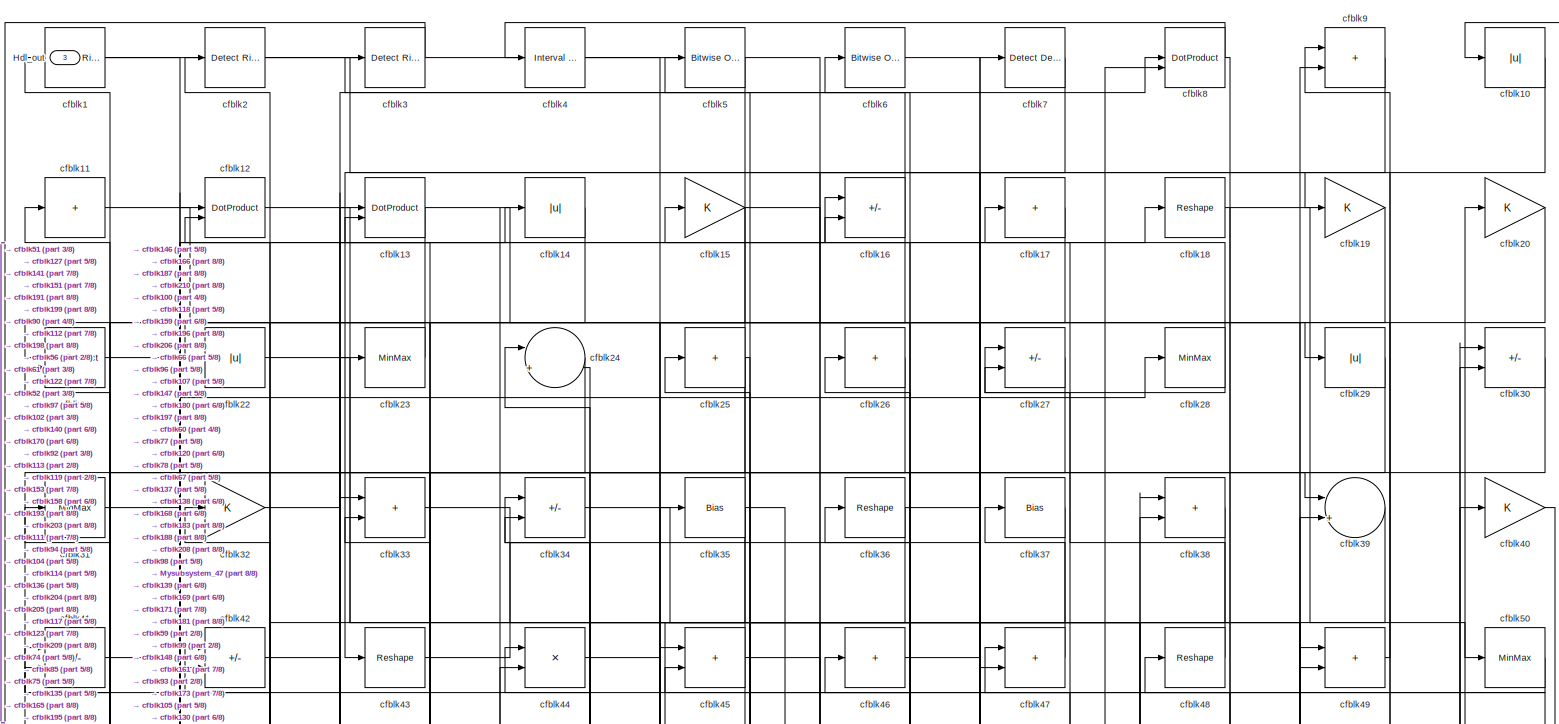
[diagram: root canvas - part 1/8, full width, top band]
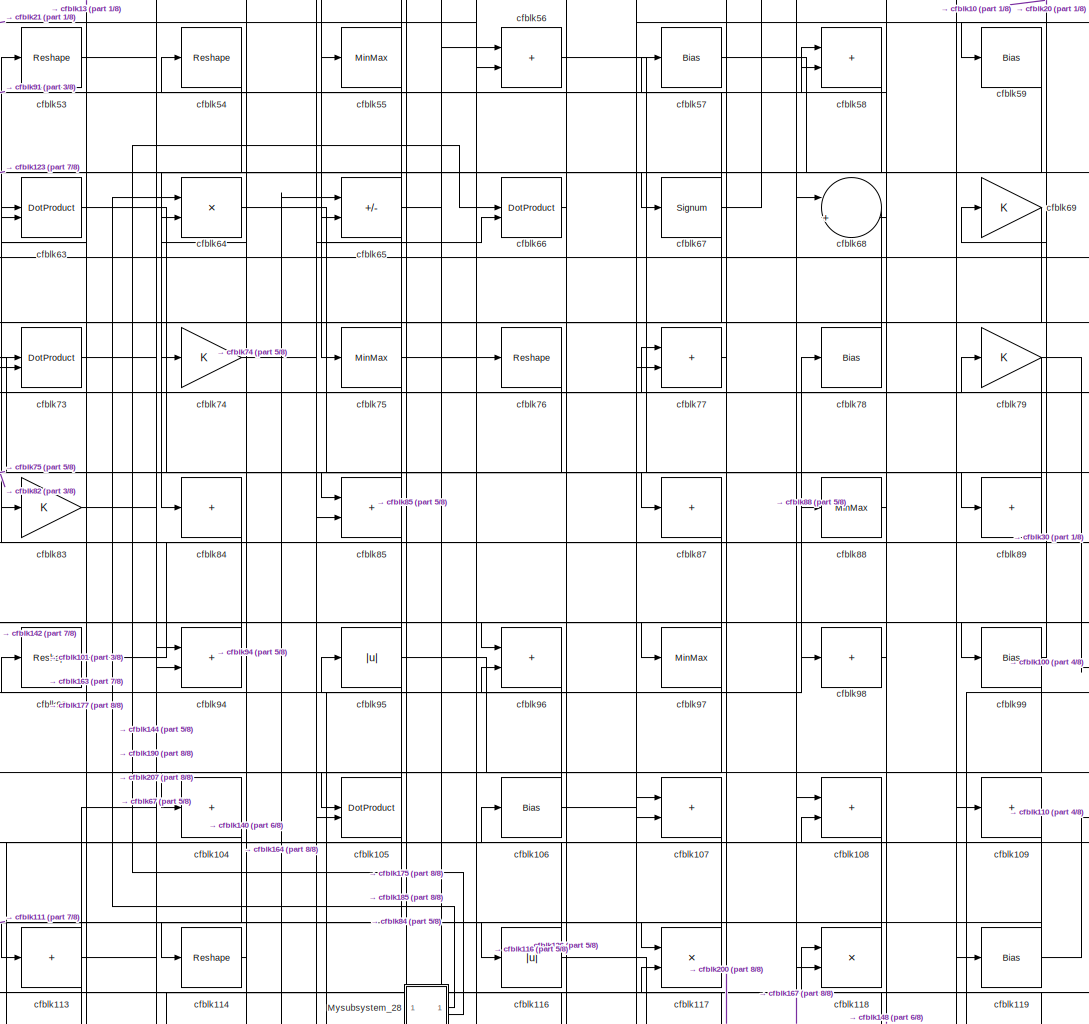
[diagram: root canvas - part 2/8, central region]
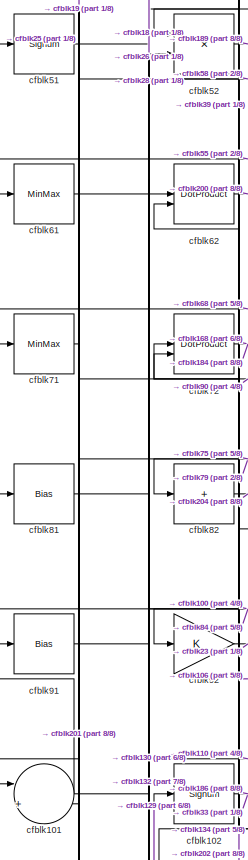
[diagram: root canvas - part 3/8, middle left region]
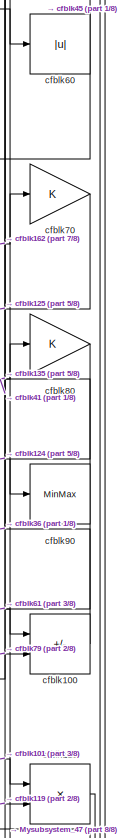
[diagram: root canvas - part 4/8, middle right region]
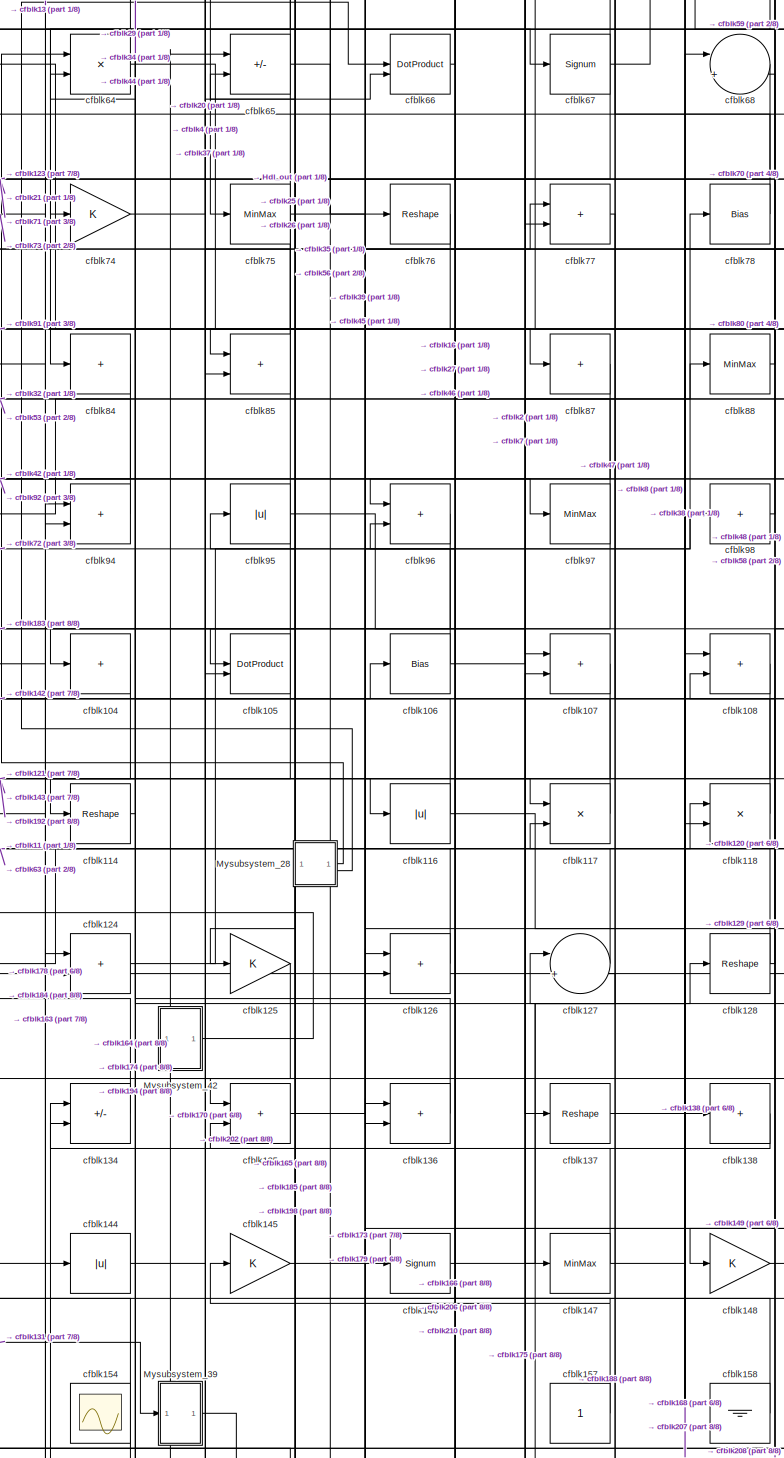
[diagram: root canvas - part 5/8, central region]
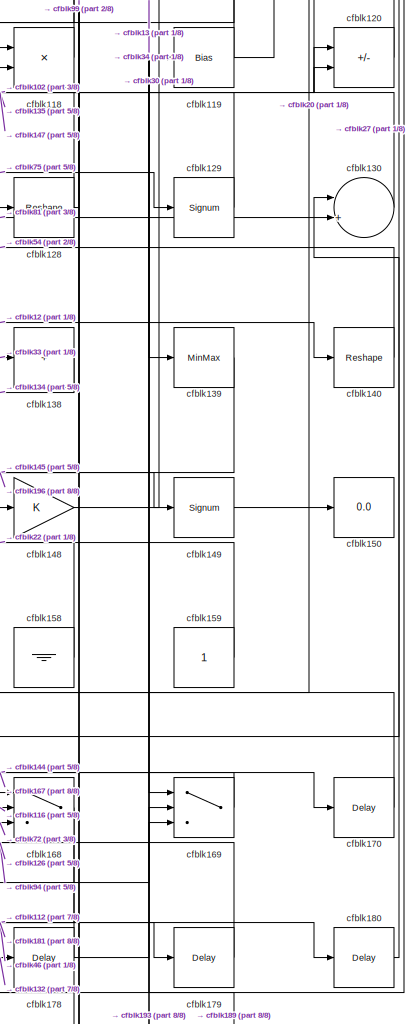
[diagram: root canvas - part 6/8, bottom right region]
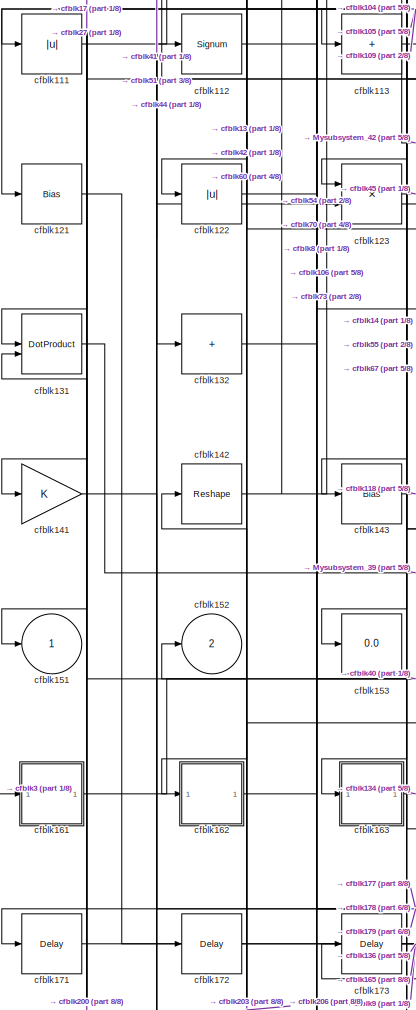
[diagram: root canvas - part 7/8, bottom left region]
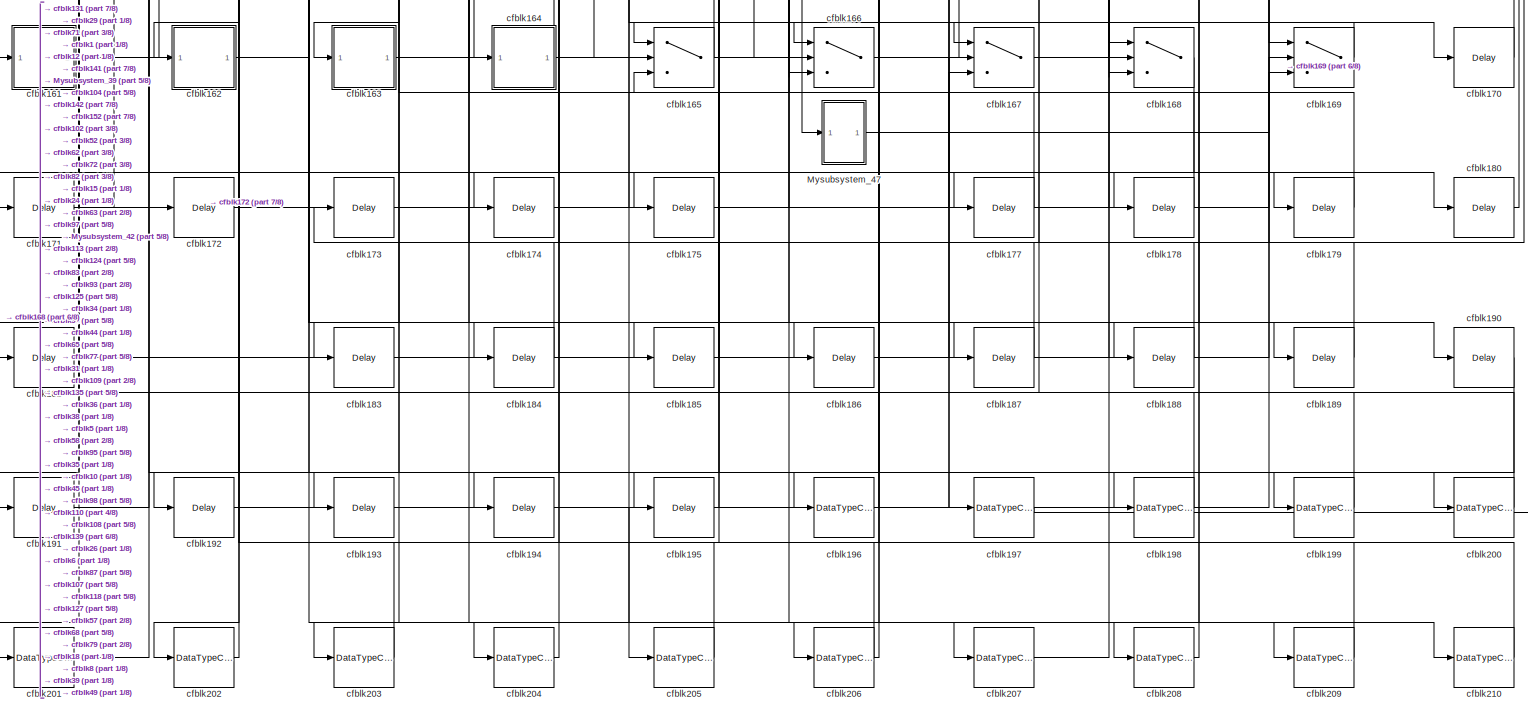
[diagram: root canvas - part 8/8, full width, bottom band]
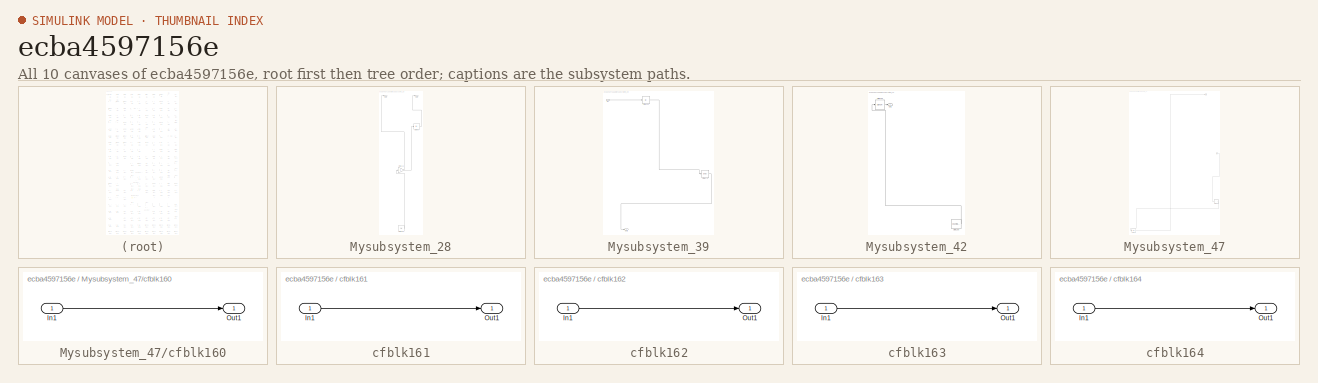
[diagram: thumbnail index - all 10 canvases of the model, root first then tree order]
MODEL slx_ecba4597156e
KIND model
CONFIG AbsTol = auto
CONFIG EnableMultiTasking = off
CONFIG FixedStep = auto
CONFIG MaxStep = auto
CONFIG MinStep = auto
CONFIG RelTol = 1e-3
CONFIG SampleTimeConstraint = Unconstrained
CONFIG SolverName = VariableStepAuto
CONFIG StartTime = 0.0
CONFIG StopTime = 10.0
BLOCK [Outport] Hdl_out
  OutDataTypeStr = uint8
  Port = 3
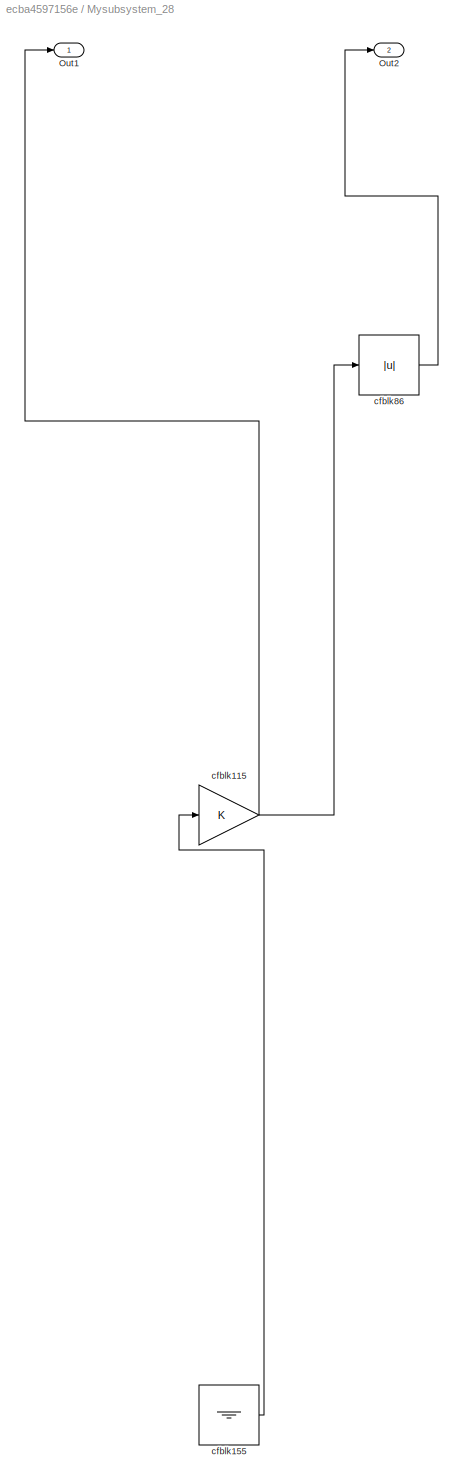
BLOCK [SubSystem] Mysubsystem_28
  RTWFcnName = Mysubsystem_28
  RTWFcnNameOpts = User specified
  RTWFileNameOpts = Use function name
  RTWSystemCode = Reusable function
  TreatAsAtomicUnit = on
BLOCK [Outport] Mysubsystem_28/Out1
BLOCK [Outport] Mysubsystem_28/Out2
  Port = 2
BLOCK [Gain] Mysubsystem_28/cfblk115
BLOCK [Ground] Mysubsystem_28/cfblk155
BLOCK [Abs] Mysubsystem_28/cfblk86
  SaturateOnIntegerOverflow = off
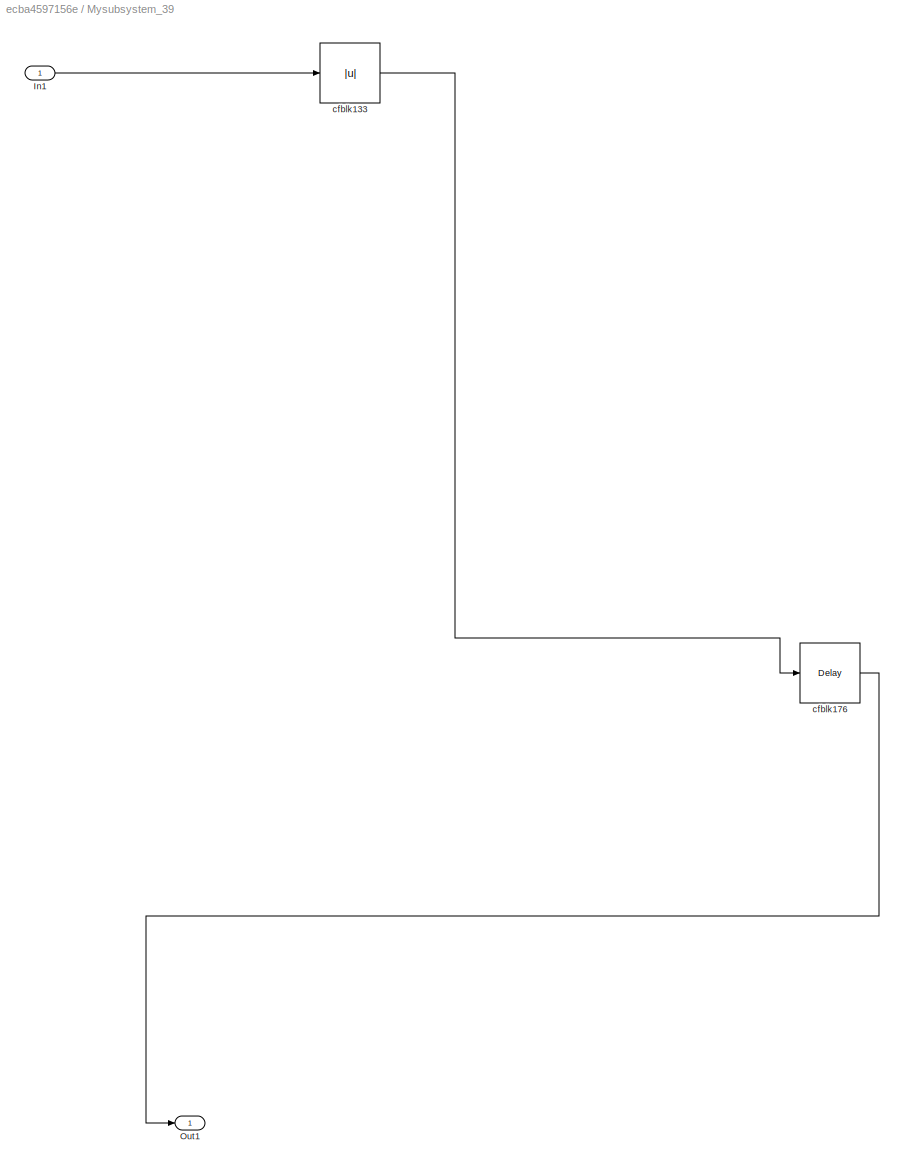
BLOCK [SubSystem] Mysubsystem_39
  RTWFcnName = Mysubsystem_39
  RTWFcnNameOpts = User specified
  RTWFileNameOpts = Use function name
  RTWSystemCode = Reusable function
  TreatAsAtomicUnit = on
BLOCK [Inport] Mysubsystem_39/In1
BLOCK [Outport] Mysubsystem_39/Out1
BLOCK [Abs] Mysubsystem_39/cfblk133
  SaturateOnIntegerOverflow = off
BLOCK [Delay] Mysubsystem_39/cfblk176
  InputPortMap = u0
  SampleTime = 1
BLOCK [SubSystem] Mysubsystem_42
  RTWFcnName = Mysubsystem_42
  RTWFcnNameOpts = User specified
  RTWFileNameOpts = Use function name
  RTWSystemCode = Reusable function
  TreatAsAtomicUnit = on
BLOCK [Outport] Mysubsystem_42/Out1
BLOCK [Signum] Mysubsystem_42/cfblk103
BLOCK [Reference] Mysubsystem_42/cfblk156  REF=hdlsllib/Sources/Counter
Limited
  SourceBlock = hdlsllib/Sources/Counter\nLimited
  SourceType = Counter Limited
BLOCK [SubSystem] Mysubsystem_47
  RTWFcnName = Mysubsystem_47
  RTWFcnNameOpts = User specified
  RTWFileNameOpts = Use function name
  RTWSystemCode = Reusable function
  TreatAsAtomicUnit = on
BLOCK [Inport] Mysubsystem_47/In1
BLOCK [Outport] Mysubsystem_47/Out1
BLOCK [SubSystem] Mysubsystem_47/cfblk160
  LibrarySourceBlock = hdlsllib/Ports &\nSubsystems/Subsystem
BLOCK [Inport] Mysubsystem_47/cfblk160/In1
BLOCK [Outport] Mysubsystem_47/cfblk160/Out1
BLOCK [Delay] Mysubsystem_47/cfblk182
  InputPortMap = u0
  SampleTime = 1
BLOCK [Reference] cfblk1  REF=hdlsllib/Logic and Bit
Operations/Detect Rise
Positive
  SourceBlock = hdlsllib/Logic and Bit\nOperations/Detect Rise\nPositive
  SourceType = Detect Rise Positive
BLOCK [Abs] cfblk10
  OutDataTypeStr = uint8
  SaturateOnIntegerOverflow = off
BLOCK [Sum] cfblk100
  IconShape = rectangular
  Inputs = +-
  OutDataTypeStr = uint8
BLOCK [Sum] cfblk101
  Inputs = |++
  OutDataTypeStr = uint8
BLOCK [Signum] cfblk102
BLOCK [Sum] cfblk104
  IconShape = rectangular
  Inputs = +
  OutDataTypeStr = uint8
BLOCK [DotProduct] cfblk105
  OutDataTypeStr = uint8
BLOCK [Bias] cfblk106
  Bias = 0.0
  SaturateOnIntegerOverflow = off
BLOCK [Sum] cfblk107
  IconShape = rectangular
  OutDataTypeStr = uint8
BLOCK [Sum] cfblk108
  IconShape = rectangular
  OutDataTypeStr = uint8
BLOCK [Sum] cfblk109
  IconShape = rectangular
  Inputs = +
  OutDataTypeStr = uint8
BLOCK [Sum] cfblk11
  IconShape = rectangular
  Inputs = +
  OutDataTypeStr = uint8
BLOCK [Product] cfblk110
  Inputs = */
  OutDataTypeStr = uint8
  RndMeth = Zero
  SaturateOnIntegerOverflow = on
BLOCK [Abs] cfblk111
  OutDataTypeStr = uint8
  SaturateOnIntegerOverflow = off
BLOCK [Signum] cfblk112
BLOCK [Sum] cfblk113
  IconShape = rectangular
  Inputs = +
  OutDataTypeStr = uint8
BLOCK [Reshape] cfblk114
BLOCK [Abs] cfblk116
  OutDataTypeStr = uint8
  SaturateOnIntegerOverflow = off
BLOCK [Product] cfblk117
  Inputs = */
  OutDataTypeStr = uint8
  RndMeth = Zero
  SaturateOnIntegerOverflow = on
BLOCK [Product] cfblk118
  Inputs = */
  OutDataTypeStr = uint8
  RndMeth = Zero
  SaturateOnIntegerOverflow = on
BLOCK [Bias] cfblk119
  Bias = 0.0
  SaturateOnIntegerOverflow = off
BLOCK [DotProduct] cfblk12
  OutDataTypeStr = uint8
BLOCK [Sum] cfblk120
  IconShape = rectangular
  Inputs = +-
  OutDataTypeStr = uint8
BLOCK [Bias] cfblk121
  Bias = 0.0
  SaturateOnIntegerOverflow = off
BLOCK [Abs] cfblk122
  OutDataTypeStr = uint8
  SaturateOnIntegerOverflow = off
BLOCK [Product] cfblk123
  Inputs = */
  OutDataTypeStr = uint8
  RndMeth = Zero
  SaturateOnIntegerOverflow = on
BLOCK [Sum] cfblk124
  IconShape = rectangular
  OutDataTypeStr = uint8
BLOCK [Gain] cfblk125
  OutDataTypeStr = uint8
BLOCK [Sum] cfblk126
  IconShape = rectangular
  OutDataTypeStr = uint8
BLOCK [Sum] cfblk127
  Inputs = |++
  OutDataTypeStr = uint8
BLOCK [Reshape] cfblk128
BLOCK [Signum] cfblk129
BLOCK [DotProduct] cfblk13
  OutDataTypeStr = uint8
BLOCK [Sum] cfblk130
  Inputs = |++
  OutDataTypeStr = uint8
BLOCK [DotProduct] cfblk131
  OutDataTypeStr = uint8
BLOCK [Sum] cfblk132
  IconShape = rectangular
  Inputs = +
  OutDataTypeStr = uint8
BLOCK [Sum] cfblk134
  IconShape = rectangular
  Inputs = +-
  OutDataTypeStr = uint8
BLOCK [Sum] cfblk135
  IconShape = rectangular
  OutDataTypeStr = uint8
BLOCK [Sum] cfblk136
  IconShape = rectangular
  OutDataTypeStr = uint8
BLOCK [Reshape] cfblk137
BLOCK [Sum] cfblk138
  IconShape = rectangular
  Inputs = +
  OutDataTypeStr = uint8
BLOCK [MinMax] cfblk139
  OutDataTypeStr = uint8
BLOCK [Abs] cfblk14
  OutDataTypeStr = uint8
  SaturateOnIntegerOverflow = off
BLOCK [Reshape] cfblk140
BLOCK [Gain] cfblk141
  OutDataTypeStr = uint8
BLOCK [Reshape] cfblk142
BLOCK [Bias] cfblk143
  Bias = 0.0
  SaturateOnIntegerOverflow = off
BLOCK [Abs] cfblk144
  OutDataTypeStr = uint8
  SaturateOnIntegerOverflow = off
BLOCK [Gain] cfblk145
  OutDataTypeStr = uint8
BLOCK [Signum] cfblk146
BLOCK [MinMax] cfblk147
  OutDataTypeStr = uint8
BLOCK [Gain] cfblk148
  OutDataTypeStr = uint8
BLOCK [Signum] cfblk149
BLOCK [Gain] cfblk15
  OutDataTypeStr = uint8
BLOCK [Display] cfblk150
  Decimation = 1
BLOCK [Outport] cfblk151
  OutDataTypeStr = uint8
  VectorParamsAs1DForOutWhenUnconnected = off
BLOCK [Outport] cfblk152
  OutDataTypeStr = uint8
  Port = 2
  VectorParamsAs1DForOutWhenUnconnected = off
BLOCK [Display] cfblk153
  Decimation = 1
BLOCK [Scope] cfblk154
  Floating = on
  NumInputPorts = 1
  ScopeSpecificationString = Simulink.scopes.TimeScopeBlockCfg('CurrentConfiguration', extmgr.ConfigurationSet(extmgr.Configuration('Core','General UI',true,'FigureColor',[0.156862745098039 0.156862745098039 0.156862745098039]),extmgr.Configuration('Core','Source UI',true),extmgr.Configuration('Sources','WiredSimulink',true,'DataLoggingVariableName','ScopeData1','DataLoggingSaveFormat','StructureWithTime','DataLoggingLimitDat...<+2713ch>
BLOCK [Constant] cfblk157
  OutDataTypeStr = uint8
  SampleTime = -1
BLOCK [Ground] cfblk158
BLOCK [Constant] cfblk159
  OutDataTypeStr = uint8
  SampleTime = -1
BLOCK [Sum] cfblk16
  IconShape = rectangular
  Inputs = +-
  OutDataTypeStr = uint8
BLOCK [SubSystem] cfblk161
  LibrarySourceBlock = hdlsllib/Ports &\nSubsystems/Subsystem
BLOCK [Inport] cfblk161/In1
BLOCK [Outport] cfblk161/Out1
BLOCK [SubSystem] cfblk162
  LibrarySourceBlock = hdlsllib/Ports &\nSubsystems/Subsystem
BLOCK [Inport] cfblk162/In1
BLOCK [Outport] cfblk162/Out1
BLOCK [SubSystem] cfblk163
  LibrarySourceBlock = hdlsllib/Ports &\nSubsystems/Subsystem
BLOCK [Inport] cfblk163/In1
BLOCK [Outport] cfblk163/Out1
BLOCK [SubSystem] cfblk164
  LibrarySourceBlock = hdlsllib/Ports &\nSubsystems/Subsystem
BLOCK [Inport] cfblk164/In1
BLOCK [Outport] cfblk164/Out1
BLOCK [Switch] cfblk165
  InputSameDT = off
  OutDataTypeStr = uint8
  SaturateOnIntegerOverflow = off
BLOCK [Switch] cfblk166
  InputSameDT = off
  OutDataTypeStr = uint8
  SaturateOnIntegerOverflow = off
BLOCK [Switch] cfblk167
  InputSameDT = off
  OutDataTypeStr = uint8
  SaturateOnIntegerOverflow = off
BLOCK [Switch] cfblk168
  InputSameDT = off
  OutDataTypeStr = uint8
  SaturateOnIntegerOverflow = off
BLOCK [Switch] cfblk169
  InputSameDT = off
  OutDataTypeStr = uint8
  SaturateOnIntegerOverflow = off
BLOCK [Sum] cfblk17
  IconShape = rectangular
  Inputs = +
  OutDataTypeStr = uint8
BLOCK [Delay] cfblk170
  InputPortMap = u0
  SampleTime = 1
BLOCK [Delay] cfblk171
  InputPortMap = u0
  SampleTime = 1
BLOCK [Delay] cfblk172
  InputPortMap = u0
  SampleTime = 1
BLOCK [Delay] cfblk173
  InputPortMap = u0
  SampleTime = 1
BLOCK [Delay] cfblk174
  InputPortMap = u0
  SampleTime = 1
BLOCK [Delay] cfblk175
  InputPortMap = u0
  SampleTime = 1
BLOCK [Delay] cfblk177
  InputPortMap = u0
  SampleTime = 1
BLOCK [Delay] cfblk178
  InputPortMap = u0
  SampleTime = 1
BLOCK [Delay] cfblk179
  InputPortMap = u0
  SampleTime = 1
BLOCK [Reshape] cfblk18
BLOCK [Delay] cfblk180
  InputPortMap = u0
  SampleTime = 1
BLOCK [Delay] cfblk181
  InputPortMap = u0
  SampleTime = 1
BLOCK [Delay] cfblk183
  InputPortMap = u0
  SampleTime = 1
BLOCK [Delay] cfblk184
  InputPortMap = u0
  SampleTime = 1
BLOCK [Delay] cfblk185
  InputPortMap = u0
  SampleTime = 1
BLOCK [Delay] cfblk186
  InputPortMap = u0
  SampleTime = 1
BLOCK [Delay] cfblk187
  InputPortMap = u0
  SampleTime = 1
BLOCK [Delay] cfblk188
  InputPortMap = u0
  SampleTime = 1
BLOCK [Delay] cfblk189
  InputPortMap = u0
  SampleTime = 1
BLOCK [Gain] cfblk19
  OutDataTypeStr = uint8
BLOCK [Delay] cfblk190
  InputPortMap = u0
  SampleTime = 1
BLOCK [Delay] cfblk191
  InputPortMap = u0
  SampleTime = 1
BLOCK [Delay] cfblk192
  InputPortMap = u0
  SampleTime = 1
BLOCK [Delay] cfblk193
  InputPortMap = u0
  SampleTime = 1
BLOCK [Delay] cfblk194
  InputPortMap = u0
  SampleTime = 1
BLOCK [Delay] cfblk195
  InputPortMap = u0
  SampleTime = 1
BLOCK [DataTypeConversion] cfblk196
  OutDataTypeStr = uint8
  RndMeth = Floor
  SaturateOnIntegerOverflow = off
BLOCK [DataTypeConversion] cfblk197
  OutDataTypeStr = uint8
  RndMeth = Floor
  SaturateOnIntegerOverflow = off
BLOCK [DataTypeConversion] cfblk198
  OutDataTypeStr = uint8
  RndMeth = Floor
  SaturateOnIntegerOverflow = off
BLOCK [DataTypeConversion] cfblk199
  OutDataTypeStr = uint8
  RndMeth = Floor
  SaturateOnIntegerOverflow = off
BLOCK [Reference] cfblk2  REF=hdlsllib/Logic and Bit
Operations/Detect Rise
Nonnegative
  SourceBlock = hdlsllib/Logic and Bit\nOperations/Detect Rise\nNonnegative
  SourceType = Detect Rise Nonnegative
BLOCK [Gain] cfblk20
  OutDataTypeStr = uint8
BLOCK [DataTypeConversion] cfblk200
  OutDataTypeStr = uint8
  RndMeth = Floor
  SaturateOnIntegerOverflow = off
BLOCK [DataTypeConversion] cfblk201
  OutDataTypeStr = uint8
  RndMeth = Floor
  SaturateOnIntegerOverflow = off
BLOCK [DataTypeConversion] cfblk202
  OutDataTypeStr = uint8
  RndMeth = Floor
  SaturateOnIntegerOverflow = off
BLOCK [DataTypeConversion] cfblk203
  OutDataTypeStr = uint8
  RndMeth = Floor
  SaturateOnIntegerOverflow = off
BLOCK [DataTypeConversion] cfblk204
  OutDataTypeStr = uint8
  RndMeth = Floor
  SaturateOnIntegerOverflow = off
BLOCK [DataTypeConversion] cfblk205
  OutDataTypeStr = uint8
  RndMeth = Floor
  SaturateOnIntegerOverflow = off
BLOCK [DataTypeConversion] cfblk206
  OutDataTypeStr = uint8
  RndMeth = Floor
  SaturateOnIntegerOverflow = off
BLOCK [DataTypeConversion] cfblk207
  OutDataTypeStr = uint8
  RndMeth = Floor
  SaturateOnIntegerOverflow = off
BLOCK [DataTypeConversion] cfblk208
  OutDataTypeStr = uint8
  RndMeth = Floor
  SaturateOnIntegerOverflow = off
BLOCK [DataTypeConversion] cfblk209
  OutDataTypeStr = uint8
  RndMeth = Floor
  SaturateOnIntegerOverflow = off
BLOCK [DotProduct] cfblk21
  OutDataTypeStr = uint8
BLOCK [DataTypeConversion] cfblk210
  OutDataTypeStr = uint8
  RndMeth = Floor
  SaturateOnIntegerOverflow = off
BLOCK [Abs] cfblk22
  OutDataTypeStr = uint8
  SaturateOnIntegerOverflow = off
BLOCK [MinMax] cfblk23
  OutDataTypeStr = uint8
BLOCK [Sum] cfblk24
  Inputs = |++
  OutDataTypeStr = uint8
BLOCK [Sum] cfblk25
  IconShape = rectangular
  Inputs = +
  OutDataTypeStr = uint8
BLOCK [Sum] cfblk26
  IconShape = rectangular
  Inputs = +
  OutDataTypeStr = uint8
BLOCK [Sum] cfblk27
  IconShape = rectangular
  Inputs = +-
  OutDataTypeStr = uint8
BLOCK [MinMax] cfblk28
  OutDataTypeStr = uint8
BLOCK [Abs] cfblk29
  OutDataTypeStr = uint8
  SaturateOnIntegerOverflow = off
BLOCK [Reference] cfblk3  REF=hdlsllib/Logic and Bit
Operations/Detect Rise
Positive
  SourceBlock = hdlsllib/Logic and Bit\nOperations/Detect Rise\nPositive
  SourceType = Detect Rise Positive
BLOCK [Sum] cfblk30
  IconShape = rectangular
  Inputs = +-
  OutDataTypeStr = uint8
BLOCK [MinMax] cfblk31
  OutDataTypeStr = uint8
BLOCK [Gain] cfblk32
  OutDataTypeStr = uint8
BLOCK [Sum] cfblk33
  IconShape = rectangular
  OutDataTypeStr = uint8
BLOCK [Sum] cfblk34
  IconShape = rectangular
  Inputs = +-
  OutDataTypeStr = uint8
BLOCK [Bias] cfblk35
  Bias = 0.0
  SaturateOnIntegerOverflow = off
BLOCK [Reshape] cfblk36
BLOCK [Bias] cfblk37
  Bias = 0.0
  SaturateOnIntegerOverflow = off
BLOCK [Sum] cfblk38
  IconShape = rectangular
  OutDataTypeStr = uint8
BLOCK [Sum] cfblk39
  Inputs = |++
  OutDataTypeStr = uint8
BLOCK [Reference] cfblk4  REF=hdlsllib/Logic and Bit
Operations/Interval Test
  SourceBlock = hdlsllib/Logic and Bit\nOperations/Interval Test
  SourceType = Interval Test
BLOCK [Gain] cfblk40
  OutDataTypeStr = uint8
BLOCK [Sum] cfblk41
  IconShape = rectangular
  Inputs = +-
  OutDataTypeStr = uint8
BLOCK [Sum] cfblk42
  IconShape = rectangular
  Inputs = +-
  OutDataTypeStr = uint8
BLOCK [Reshape] cfblk43
BLOCK [Product] cfblk44
  Inputs = */
  OutDataTypeStr = uint8
  RndMeth = Zero
  SaturateOnIntegerOverflow = on
BLOCK [Sum] cfblk45
  IconShape = rectangular
  OutDataTypeStr = uint8
BLOCK [Sum] cfblk46
  IconShape = rectangular
  Inputs = +
  OutDataTypeStr = uint8
BLOCK [Sum] cfblk47
  IconShape = rectangular
  OutDataTypeStr = uint8
BLOCK [Reshape] cfblk48
BLOCK [Sum] cfblk49
  IconShape = rectangular
  OutDataTypeStr = uint8
BLOCK [Reference] cfblk5  REF=simulink/Logic and Bit
Operations/Bitwise
Operator
  LibrarySourceBlock = hdlsllib/Logic and Bit\nOperations/Bitwise\nOperator
  SourceBlock = simulink/Logic and Bit\nOperations/Bitwise\nOperator
  SourceType = Bitwise Operator
BLOCK [MinMax] cfblk50
  OutDataTypeStr = uint8
BLOCK [Signum] cfblk51
BLOCK [Product] cfblk52
  Inputs = */
  OutDataTypeStr = uint8
  RndMeth = Zero
  SaturateOnIntegerOverflow = on
BLOCK [Reshape] cfblk53
BLOCK [Reshape] cfblk54
BLOCK [MinMax] cfblk55
  OutDataTypeStr = uint8
BLOCK [Sum] cfblk56
  IconShape = rectangular
  OutDataTypeStr = uint8
BLOCK [Bias] cfblk57
  Bias = 0.0
  SaturateOnIntegerOverflow = off
BLOCK [Sum] cfblk58
  IconShape = rectangular
  OutDataTypeStr = uint8
BLOCK [Bias] cfblk59
  Bias = 0.0
  SaturateOnIntegerOverflow = off
BLOCK [Reference] cfblk6  REF=simulink/Logic and Bit
Operations/Bitwise
Operator
  LibrarySourceBlock = hdlsllib/Logic and Bit\nOperations/Bitwise\nOperator
  SourceBlock = simulink/Logic and Bit\nOperations/Bitwise\nOperator
  SourceType = Bitwise Operator
BLOCK [Abs] cfblk60
  OutDataTypeStr = uint8
  SaturateOnIntegerOverflow = off
BLOCK [MinMax] cfblk61
  OutDataTypeStr = uint8
BLOCK [DotProduct] cfblk62
  OutDataTypeStr = uint8
BLOCK [DotProduct] cfblk63
  OutDataTypeStr = uint8
BLOCK [Product] cfblk64
  Inputs = */
  OutDataTypeStr = uint8
  RndMeth = Zero
  SaturateOnIntegerOverflow = on
BLOCK [Sum] cfblk65
  IconShape = rectangular
  Inputs = +-
  OutDataTypeStr = uint8
BLOCK [DotProduct] cfblk66
  OutDataTypeStr = uint8
BLOCK [Signum] cfblk67
BLOCK [Sum] cfblk68
  Inputs = |++
  OutDataTypeStr = uint8
BLOCK [Gain] cfblk69
  OutDataTypeStr = uint8
BLOCK [Reference] cfblk7  REF=simulink/Logic and Bit
Operations/Detect
Decrease
  LibrarySourceBlock = hdlsllib/Logic and Bit\nOperations/Detect\nDecrease
  SourceBlock = simulink/Logic and Bit\nOperations/Detect\nDecrease
  SourceType = Detect Decrease
BLOCK [Gain] cfblk70
  OutDataTypeStr = uint8
BLOCK [MinMax] cfblk71
  OutDataTypeStr = uint8
BLOCK [DotProduct] cfblk72
  OutDataTypeStr = uint8
BLOCK [DotProduct] cfblk73
  OutDataTypeStr = uint8
BLOCK [Gain] cfblk74
  OutDataTypeStr = uint8
BLOCK [MinMax] cfblk75
  OutDataTypeStr = uint8
BLOCK [Reshape] cfblk76
BLOCK [Sum] cfblk77
  IconShape = rectangular
  OutDataTypeStr = uint8
BLOCK [Bias] cfblk78
  Bias = 0.0
  SaturateOnIntegerOverflow = off
BLOCK [Gain] cfblk79
  OutDataTypeStr = uint8
BLOCK [DotProduct] cfblk8
  OutDataTypeStr = uint8
BLOCK [Gain] cfblk80
  OutDataTypeStr = uint8
BLOCK [Bias] cfblk81
  Bias = 0.0
  SaturateOnIntegerOverflow = off
BLOCK [Sum] cfblk82
  IconShape = rectangular
  Inputs = +
  OutDataTypeStr = uint8
BLOCK [Gain] cfblk83
  OutDataTypeStr = uint8
BLOCK [Sum] cfblk84
  IconShape = rectangular
  Inputs = +
  OutDataTypeStr = uint8
BLOCK [Sum] cfblk85
  IconShape = rectangular
  OutDataTypeStr = uint8
BLOCK [Sum] cfblk87
  IconShape = rectangular
  Inputs = +
  OutDataTypeStr = uint8
BLOCK [MinMax] cfblk88
  OutDataTypeStr = uint8
BLOCK [Sum] cfblk89
  IconShape = rectangular
  Inputs = +
  OutDataTypeStr = uint8
BLOCK [Sum] cfblk9
  IconShape = rectangular
  OutDataTypeStr = uint8
BLOCK [MinMax] cfblk90
  OutDataTypeStr = uint8
BLOCK [Bias] cfblk91
  Bias = 0.0
  SaturateOnIntegerOverflow = off
BLOCK [Gain] cfblk92
  OutDataTypeStr = uint8
BLOCK [Reshape] cfblk93
BLOCK [Sum] cfblk94
  IconShape = rectangular
  OutDataTypeStr = uint8
BLOCK [Abs] cfblk95
  OutDataTypeStr = uint8
  SaturateOnIntegerOverflow = off
BLOCK [Sum] cfblk96
  IconShape = rectangular
  OutDataTypeStr = uint8
BLOCK [MinMax] cfblk97
  OutDataTypeStr = uint8
BLOCK [Sum] cfblk98
  IconShape = rectangular
  Inputs = +
  OutDataTypeStr = uint8
BLOCK [Bias] cfblk99
  Bias = 0.0
  SaturateOnIntegerOverflow = off
NET Mysubsystem_28/cfblk115:1 -> Mysubsystem_28/Out1:1, Mysubsystem_28/cfblk86:1
LINE Mysubsystem_28/cfblk155:1 -> Mysubsystem_28/cfblk115:1
LINE Mysubsystem_28/cfblk86:1 -> Mysubsystem_28/Out2:1
LINE Mysubsystem_28:1 -> cfblk64:1
LINE Mysubsystem_28:2 -> cfblk66:1
LINE Mysubsystem_39/In1:1 -> Mysubsystem_39/cfblk133:1
LINE Mysubsystem_39/cfblk133:1 -> Mysubsystem_39/cfblk176:1
LINE Mysubsystem_39/cfblk176:1 -> Mysubsystem_39/Out1:1
LINE Mysubsystem_39:1 -> cfblk202:1
LINE Mysubsystem_42/cfblk103:1 -> Mysubsystem_42/Out1:1
LINE Mysubsystem_42/cfblk156:1 -> Mysubsystem_42/cfblk103:1
NET Mysubsystem_42:1 -> cfblk131:1, cfblk164:1
LINE Mysubsystem_47/In1:1 -> Mysubsystem_47/cfblk160:1
LINE Mysubsystem_47/cfblk160/In1:1 -> Mysubsystem_47/cfblk160/Out1:1
LINE Mysubsystem_47/cfblk160:1 -> Mysubsystem_47/cfblk182:1
LINE Mysubsystem_47/cfblk182:1 -> Mysubsystem_47/Out1:1
LINE Mysubsystem_47:1 -> cfblk49:1
LINE cfblk100:1 -> cfblk36:1
NET cfblk101:1 -> cfblk110:1, cfblk81:1
NET cfblk102:1 -> cfblk186:1, cfblk33:1
NET cfblk104:1 -> cfblk143:1, cfblk192:1
NET cfblk105:1 -> Hdl_out:1, cfblk121:1
NET cfblk106:1 -> cfblk72:1, cfblk88:1
LINE cfblk107:1 -> cfblk126:2
LINE cfblk108:1 -> cfblk206:1
NET cfblk109:1 -> cfblk111:1, cfblk175:1
NET cfblk10:1 -> cfblk166:3, cfblk19:1, cfblk99:1
LINE cfblk110:1 -> Mysubsystem_47:1
LINE cfblk111:1 -> cfblk44:2
LINE cfblk112:1 -> cfblk179:1
LINE cfblk113:1 -> cfblk207:1
LINE cfblk114:1 -> cfblk44:1
NET cfblk116:1 -> cfblk168:2, cfblk64:2
LINE cfblk117:1 -> cfblk2:1
LINE cfblk118:1 -> cfblk46:1
NET cfblk119:1 -> cfblk110:2, cfblk13:2
LINE cfblk11:1 -> cfblk107:1
LINE cfblk120:1 -> cfblk27:1
NET cfblk121:1 -> cfblk171:1, cfblk172:1
NET cfblk122:1 -> cfblk42:1, cfblk8:1
LINE cfblk123:1 -> cfblk45:1
LINE cfblk124:1 -> cfblk78:1
LINE cfblk125:1 -> cfblk194:1
LINE cfblk126:1 -> cfblk63:1
LINE cfblk127:1 -> cfblk11:1
NET cfblk128:1 -> cfblk117:2, cfblk68:2
LINE cfblk129:1 -> cfblk102:1
NET cfblk12:1 -> cfblk140:1, cfblk49:2
LINE cfblk130:1 -> cfblk20:1
LINE cfblk131:1 -> Mysubsystem_39:1
LINE cfblk132:1 -> cfblk178:1
LINE cfblk134:1 -> cfblk72:2
NET cfblk135:1 -> cfblk120:1, cfblk80:1
LINE cfblk136:1 -> cfblk34:1
LINE cfblk137:1 -> cfblk38:1
LINE cfblk138:1 -> cfblk134:2
LINE cfblk139:1 -> cfblk196:1
NET cfblk13:1 -> cfblk122:1, cfblk139:1, cfblk94:2
LINE cfblk140:1 -> cfblk54:1
LINE cfblk141:1 -> cfblk177:1
NET cfblk142:1 -> cfblk106:1, cfblk73:2
LINE cfblk143:1 -> cfblk118:1
NET cfblk144:1 -> cfblk170:1, cfblk66:2
LINE cfblk145:1 -> cfblk149:1
LINE cfblk146:1 -> cfblk128:1
NET cfblk147:1 -> cfblk120:2, cfblk25:1
LINE cfblk148:1 -> cfblk30:1
LINE cfblk149:1 -> cfblk150:1
LINE cfblk14:1 -> cfblk153:1
NET cfblk157:1 -> cfblk145:1, cfblk65:2
LINE cfblk158:1 -> cfblk33:2
LINE cfblk159:1 -> cfblk22:1
NET cfblk15:1 -> cfblk193:1, cfblk29:1
LINE cfblk161/In1:1 -> cfblk161/Out1:1
LINE cfblk161:1 -> cfblk40:1
LINE cfblk162/In1:1 -> cfblk162/Out1:1
LINE cfblk162:1 -> cfblk70:1
LINE cfblk163/In1:1 -> cfblk163/Out1:1
LINE cfblk163:1 -> cfblk134:1
LINE cfblk164/In1:1 -> cfblk164/Out1:1
NET cfblk164:1 -> cfblk65:1, cfblk77:1, cfblk93:1
NET cfblk165:1 -> cfblk31:1, cfblk98:1
LINE cfblk166:1 -> cfblk118:2
LINE cfblk167:1 -> cfblk79:1
LINE cfblk168:1 -> cfblk181:1
LINE cfblk169:1 -> cfblk167:1
NET cfblk16:1 -> cfblk105:2, cfblk3:1
LINE cfblk170:1 -> cfblk13:1
LINE cfblk171:1 -> cfblk9:2
LINE cfblk172:1 -> cfblk165:2
LINE cfblk173:1 -> cfblk136:1
LINE cfblk174:1 -> cfblk68:1
LINE cfblk175:1 -> cfblk107:2
LINE cfblk177:1 -> cfblk63:2
LINE cfblk178:1 -> cfblk94:1
LINE cfblk179:1 -> cfblk126:1
NET cfblk17:1 -> cfblk151:1, cfblk47:2
LINE cfblk180:1 -> cfblk130:1
LINE cfblk181:1 -> cfblk39:2
LINE cfblk183:1 -> cfblk38:2
LINE cfblk184:1 -> cfblk124:1
LINE cfblk185:1 -> cfblk135:2
LINE cfblk186:1 -> cfblk167:3
LINE cfblk187:1 -> cfblk34:2
LINE cfblk188:1 -> cfblk127:2
LINE cfblk189:1 -> cfblk169:2
NET cfblk18:1 -> cfblk208:1, cfblk50:1
LINE cfblk190:1 -> cfblk199:1
LINE cfblk191:1 -> cfblk12:1
LINE cfblk192:1 -> cfblk167:2
LINE cfblk193:1 -> cfblk169:3
LINE cfblk194:1 -> cfblk205:1
LINE cfblk195:1 -> cfblk165:3
LINE cfblk196:1 -> cfblk6:1
LINE cfblk197:1 -> cfblk10:1
LINE cfblk198:1 -> cfblk95:1
LINE cfblk199:1 -> cfblk1:1
LINE cfblk19:1 -> cfblk61:1
LINE cfblk1:1 -> cfblk198:1
NET cfblk200:1 -> cfblk131:2, cfblk57:1
LINE cfblk201:1 -> cfblk62:1
LINE cfblk202:1 -> cfblk62:2
NET cfblk203:1 -> cfblk12:2, cfblk152:1
LINE cfblk204:1 -> cfblk24:1
LINE cfblk205:1 -> cfblk24:2
NET cfblk206:1 -> cfblk142:1, cfblk26:1
LINE cfblk207:1 -> cfblk108:1
LINE cfblk208:1 -> cfblk108:2
LINE cfblk209:1 -> cfblk5:1
NET cfblk20:1 -> cfblk59:1, cfblk85:2
LINE cfblk210:1 -> cfblk96:2
NET cfblk21:1 -> cfblk42:2, cfblk56:2
LINE cfblk22:1 -> cfblk168:1
LINE cfblk23:1 -> cfblk21:1
LINE cfblk24:1 -> cfblk203:1
NET cfblk25:1 -> cfblk135:1, cfblk51:1
NET cfblk26:1 -> cfblk105:1, cfblk52:2
NET cfblk27:1 -> cfblk141:1, cfblk96:1
NET cfblk28:1 -> cfblk15:1, cfblk27:2
NET cfblk29:1 -> cfblk104:1, cfblk191:1
LINE cfblk2:1 -> cfblk147:1
LINE cfblk30:1 -> cfblk113:1
NET cfblk31:1 -> cfblk14:1, cfblk39:1
LINE cfblk32:1 -> cfblk16:2
LINE cfblk33:1 -> cfblk138:1
LINE cfblk34:1 -> cfblk169:1
NET cfblk35:1 -> cfblk114:1, cfblk166:2
NET cfblk36:1 -> cfblk195:1, cfblk60:1
LINE cfblk37:1 -> cfblk75:1
LINE cfblk38:1 -> cfblk165:1
NET cfblk39:1 -> cfblk136:2, cfblk52:1
LINE cfblk3:1 -> cfblk161:1
LINE cfblk40:1 -> cfblk173:1
LINE cfblk41:1 -> cfblk112:1
LINE cfblk42:1 -> cfblk97:1
LINE cfblk43:1 -> cfblk7:1
LINE cfblk44:1 -> cfblk209:1
NET cfblk45:1 -> cfblk146:1, cfblk187:1
LINE cfblk46:1 -> cfblk180:1
LINE cfblk47:1 -> cfblk37:1
LINE cfblk48:1 -> cfblk17:1
LINE cfblk49:1 -> cfblk9:1
LINE cfblk4:1 -> cfblk117:1
LINE cfblk50:1 -> cfblk41:2
LINE cfblk51:1 -> cfblk132:1
LINE cfblk52:1 -> cfblk189:1
NET cfblk53:1 -> cfblk144:1, cfblk67:1
LINE cfblk54:1 -> cfblk123:2
NET cfblk55:1 -> cfblk101:1, cfblk163:1
LINE cfblk56:1 -> cfblk89:1
LINE cfblk57:1 -> cfblk109:1
NET cfblk58:1 -> cfblk185:1, cfblk84:1
LINE cfblk59:1 -> cfblk74:1
LINE cfblk5:1 -> cfblk210:1
NET cfblk60:1 -> cfblk162:1, cfblk45:2
NET cfblk61:1 -> cfblk100:1, cfblk18:1, cfblk28:1
LINE cfblk62:1 -> cfblk200:1
LINE cfblk63:1 -> cfblk119:1
LINE cfblk64:1 -> cfblk87:1
LINE cfblk65:1 -> cfblk76:1
LINE cfblk66:1 -> cfblk16:1
NET cfblk67:1 -> cfblk123:1, cfblk21:2, cfblk8:2
LINE cfblk68:1 -> cfblk71:1
LINE cfblk69:1 -> cfblk83:1
LINE cfblk6:1 -> cfblk197:1
LINE cfblk70:1 -> cfblk125:1
LINE cfblk71:1 -> cfblk201:1
NET cfblk72:1 -> cfblk168:3, cfblk184:1
LINE cfblk73:1 -> cfblk116:1
LINE cfblk74:1 -> cfblk35:1
NET cfblk75:1 -> cfblk129:1, cfblk56:1, cfblk91:1
LINE cfblk76:1 -> cfblk85:1
LINE cfblk77:1 -> cfblk127:1
LINE cfblk78:1 -> cfblk47:1
NET cfblk79:1 -> cfblk100:2, cfblk82:1
LINE cfblk7:1 -> cfblk77:2
NET cfblk80:1 -> cfblk124:2, cfblk90:1
LINE cfblk81:1 -> cfblk130:2
LINE cfblk82:1 -> cfblk204:1
LINE cfblk83:1 -> cfblk190:1
LINE cfblk84:1 -> cfblk92:1
LINE cfblk85:1 -> cfblk73:1
LINE cfblk87:1 -> cfblk166:1
LINE cfblk88:1 -> cfblk58:2
LINE cfblk89:1 -> cfblk55:1
NET cfblk8:1 -> cfblk188:1, cfblk4:1
NET cfblk90:1 -> cfblk101:2, cfblk41:1
LINE cfblk91:1 -> cfblk58:1
LINE cfblk92:1 -> cfblk23:1
LINE cfblk93:1 -> cfblk30:2
LINE cfblk94:1 -> cfblk53:1
LINE cfblk95:1 -> cfblk137:1
LINE cfblk96:1 -> cfblk174:1
NET cfblk97:1 -> cfblk183:1, cfblk32:1
LINE cfblk98:1 -> cfblk48:1
NET cfblk99:1 -> cfblk148:1, cfblk69:1
LINE cfblk9:1 -> cfblk43:1
note: NET lines group one-source signal fan-out (src -> all destinations, sorted); 1:1 wires keep LINE
